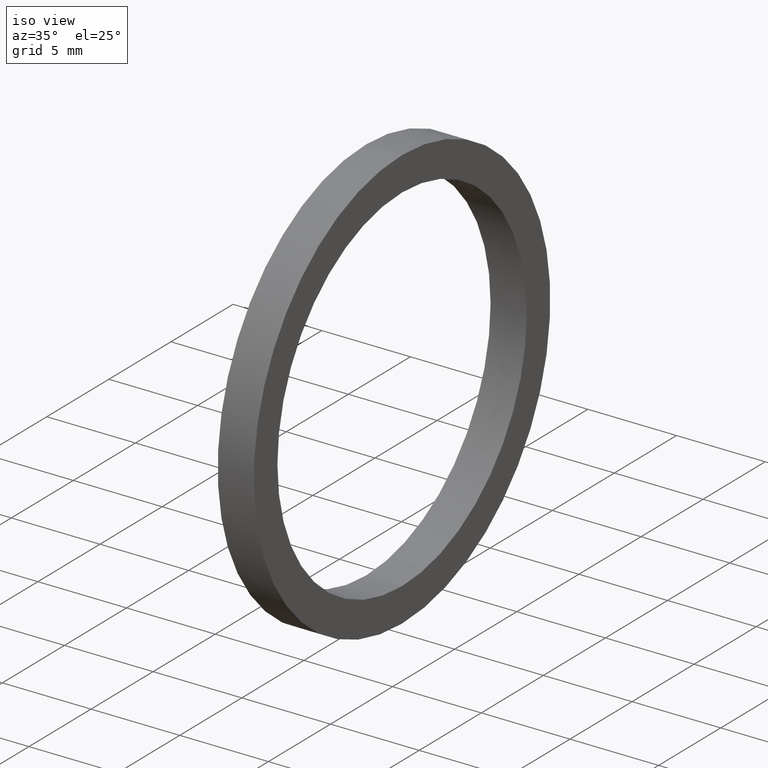
[diagram: clean part render]
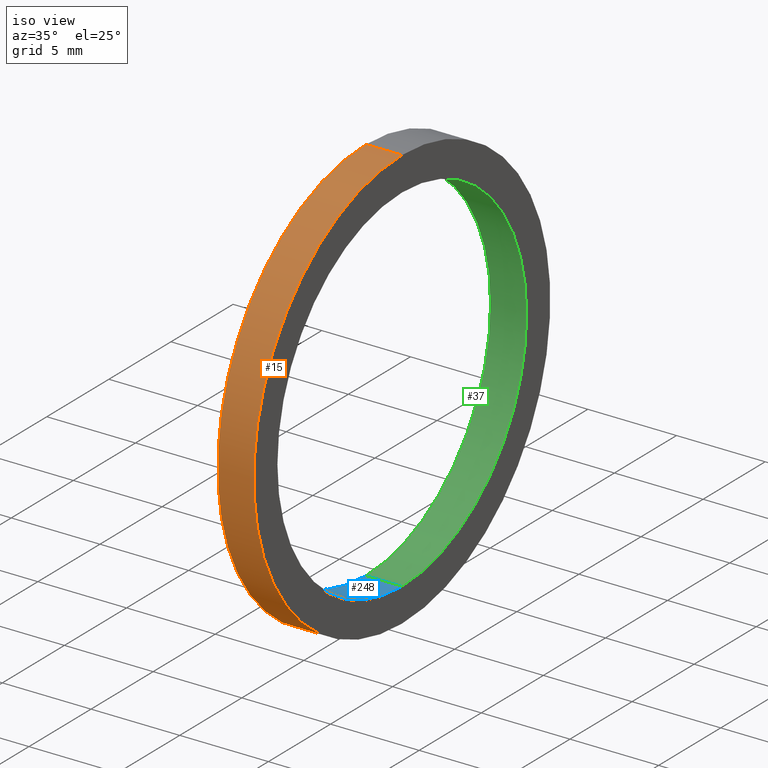
[diagram: same view with three faces highlighted in distinct colors, each labeled with its STEP entity id]
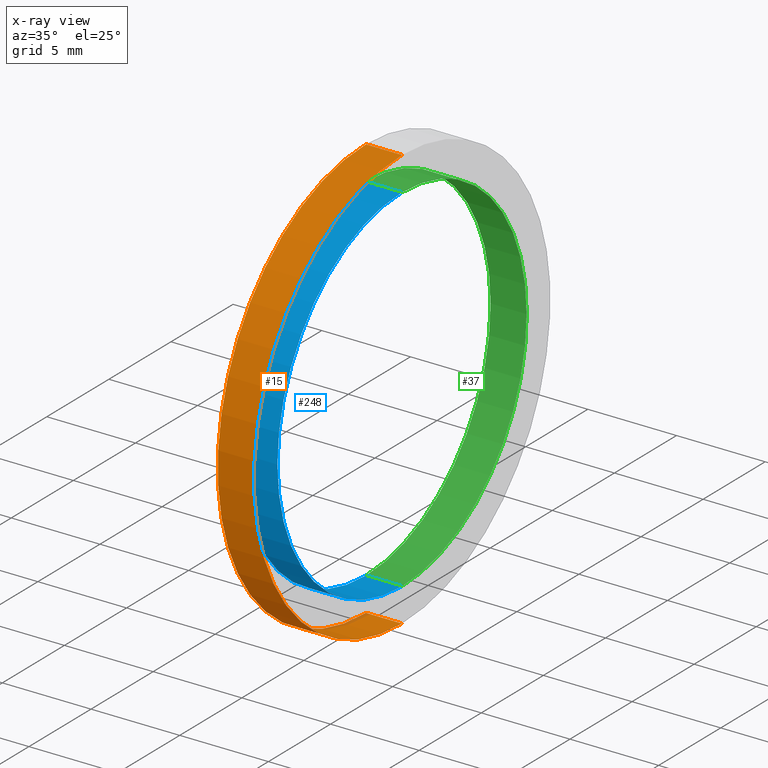
[diagram: x-ray of the same camera — body ghosted, the three highlighted faces saturated]
A machine part, iso view with three faces highlighted in distinct colors.
The next image is the same camera in x-ray (body ghosted, the three faces saturated) — at least one of them is partly hidden behind the body in this view.
Their STEP definitions:

[orange] entity #15 — the highlighted cylindrical surface (partial cylindrical patch) has radius 11.938 mm, axis along (-1, 0, 0).
#3 = VERTEX_POINT ( 'NONE', #20 ) ;
#11 = VERTEX_POINT ( 'NONE', #63 ) ;
#12 = VERTEX_POINT ( 'NONE', #66 ) ;
#14 = ORIENTED_EDGE ( 'NONE', *, *, #239, .T. ) ;
#15 = ADVANCED_FACE ( 'NONE', ( #89 ), #90, .T. ) ;
#16 = ORIENTED_EDGE ( 'NONE', *, *, #234, .F. ) ;
#17 = ORIENTED_EDGE ( 'NONE', *, *, #29, .T. ) ;
#20 = CARTESIAN_POINT ( 'NONE',  ( 0.07999999999999996000, 0.0000000000000000000, 0.4699999999999999700 ) ) ;
#28 = EDGE_LOOP ( 'NONE', ( #16, #17, #14, #229 ) ) ;
#29 = EDGE_CURVE ( 'NONE', #11, #3, #76, .T. ) ;
#63 = CARTESIAN_POINT ( 'NONE',  ( 0.07999999999999996000, 5.755839955992559700E-017, -0.4699999999999999700 ) ) ;
#66 = CARTESIAN_POINT ( 'NONE',  ( 0.0000000000000000000, 5.755839955992559700E-017, -0.4699999999999999700 ) ) ;
#73 = DIRECTION ( 'NONE',  ( 0.0000000000000000000, 0.0000000000000000000, 1.000000000000000000 ) ) ;
#74 = DIRECTION ( 'NONE',  ( -1.000000000000000000, 0.0000000000000000000, 0.0000000000000000000 ) ) ;
#75 = AXIS2_PLACEMENT_3D ( 'NONE', #92, #74, #73 ) ;
#76 = CIRCLE ( 'NONE', #75, 0.4699999999999999700 ) ;
#88 = AXIS2_PLACEMENT_3D ( 'NONE', #97, #96, #95 ) ;
#89 = FACE_OUTER_BOUND ( 'NONE', #28, .T. ) ;
#90 = CYLINDRICAL_SURFACE ( 'NONE', #88, 0.4699999999999999700 ) ;
#92 = CARTESIAN_POINT ( 'NONE',  ( 0.07999999999999996000, 0.0000000000000000000, 0.0000000000000000000 ) ) ;
#95 = DIRECTION ( 'NONE',  ( 0.0000000000000000000, 0.0000000000000000000, 1.000000000000000000 ) ) ;
#96 = DIRECTION ( 'NONE',  ( -1.000000000000000000, 0.0000000000000000000, 0.0000000000000000000 ) ) ;
#97 = CARTESIAN_POINT ( 'NONE',  ( -1.721125226614714300, 0.0000000000000000000, 0.0000000000000000000 ) ) ;
#104 = DIRECTION ( 'NONE',  ( -1.000000000000000000, 0.0000000000000000000, 0.0000000000000000000 ) ) ;
#105 = VECTOR ( 'NONE', #104, 39.37007874015748100 ) ;
#106 = CARTESIAN_POINT ( 'NONE',  ( -1.721125226614714300, 5.755839955992559700E-017, -0.4699999999999999700 ) ) ;
#107 = LINE ( 'NONE', #106, #105 ) ;
#118 = CARTESIAN_POINT ( 'NONE',  ( 0.0000000000000000000, 0.0000000000000000000, 0.0000000000000000000 ) ) ;
#119 = CARTESIAN_POINT ( 'NONE',  ( 0.0000000000000000000, 0.0000000000000000000, 0.4699999999999999700 ) ) ;
#123 = DIRECTION ( 'NONE',  ( -1.000000000000000000, 0.0000000000000000000, 0.0000000000000000000 ) ) ;
#124 = VECTOR ( 'NONE', #123, 39.37007874015748100 ) ;
#140 = DIRECTION ( 'NONE',  ( 0.0000000000000000000, 0.0000000000000000000, 1.000000000000000000 ) ) ;
#141 = DIRECTION ( 'NONE',  ( -1.000000000000000000, 0.0000000000000000000, 0.0000000000000000000 ) ) ;
#142 = AXIS2_PLACEMENT_3D ( 'NONE', #118, #141, #140 ) ;
#143 = CIRCLE ( 'NONE', #142, 0.4699999999999999700 ) ;
#179 = CARTESIAN_POINT ( 'NONE',  ( -1.721125226614714300, 0.0000000000000000000, 0.4699999999999999700 ) ) ;
#180 = LINE ( 'NONE', #179, #124 ) ;
#229 = ORIENTED_EDGE ( 'NONE', *, *, #244, .F. ) ;
#234 = EDGE_CURVE ( 'NONE', #11, #12, #107, .T. ) ;
#237 = VERTEX_POINT ( 'NONE', #119 ) ;
#239 = EDGE_CURVE ( 'NONE', #3, #237, #180, .T. ) ;
#244 = EDGE_CURVE ( 'NONE', #12, #237, #143, .T. ) ;

[blue] entity #248 — the highlighted cylindrical surface (partial cylindrical patch) has radius 10.033 mm, axis along (-1, 0, 0).
#4 = EDGE_CURVE ( 'NONE', #252, #5, #19, .T. ) ;
#5 = VERTEX_POINT ( 'NONE', #49 ) ;
#6 = ORIENTED_EDGE ( 'NONE', *, *, #7, .T. ) ;
#7 = EDGE_CURVE ( 'NONE', #5, #8, #48, .T. ) ;
#8 = VERTEX_POINT ( 'NONE', #53 ) ;
#9 = ORIENTED_EDGE ( 'NONE', *, *, #10, .F. ) ;
#10 = EDGE_CURVE ( 'NONE', #44, #8, #56, .T. ) ;
#19 = LINE ( 'NONE', #47, #55 ) ;
#44 = VERTEX_POINT ( 'NONE', #101 ) ;
#45 = ORIENTED_EDGE ( 'NONE', *, *, #4, .T. ) ;
#46 = DIRECTION ( 'NONE',  ( -1.000000000000000000, 0.0000000000000000000, 0.0000000000000000000 ) ) ;
#47 = CARTESIAN_POINT ( 'NONE',  ( -1.721125226614714300, 4.837354856632045600E-017, -0.3950000000000000200 ) ) ;
#48 = CIRCLE ( 'NONE', #52, 0.3950000000000000200 ) ;
#49 = CARTESIAN_POINT ( 'NONE',  ( 0.0000000000000000000, 4.837354856632045600E-017, -0.3950000000000000200 ) ) ;
#50 = DIRECTION ( 'NONE',  ( -1.000000000000000000, 0.0000000000000000000, 0.0000000000000000000 ) ) ;
#51 = CARTESIAN_POINT ( 'NONE',  ( 0.0000000000000000000, 0.0000000000000000000, 0.0000000000000000000 ) ) ;
#52 = AXIS2_PLACEMENT_3D ( 'NONE', #51, #50, #54 ) ;
#53 = CARTESIAN_POINT ( 'NONE',  ( 0.0000000000000000000, 0.0000000000000000000, 0.3950000000000000200 ) ) ;
#54 = DIRECTION ( 'NONE',  ( 0.0000000000000000000, 0.0000000000000000000, 1.000000000000000000 ) ) ;
#55 = VECTOR ( 'NONE', #46, 39.37007874015748100 ) ;
#56 = LINE ( 'NONE', #62, #61 ) ;
#60 = DIRECTION ( 'NONE',  ( -1.000000000000000000, 0.0000000000000000000, 0.0000000000000000000 ) ) ;
#61 = VECTOR ( 'NONE', #60, 39.37007874015748100 ) ;
#62 = CARTESIAN_POINT ( 'NONE',  ( -1.721125226614714300, 0.0000000000000000000, 0.3950000000000000200 ) ) ;
#101 = CARTESIAN_POINT ( 'NONE',  ( 0.07999999999999996000, 0.0000000000000000000, 0.3950000000000000200 ) ) ;
#134 = CARTESIAN_POINT ( 'NONE',  ( 0.07999999999999996000, 4.837354856632045600E-017, -0.3950000000000000200 ) ) ;
#135 = DIRECTION ( 'NONE',  ( 0.0000000000000000000, 0.0000000000000000000, 1.000000000000000000 ) ) ;
#136 = DIRECTION ( 'NONE',  ( -1.000000000000000000, 0.0000000000000000000, 0.0000000000000000000 ) ) ;
#137 = CARTESIAN_POINT ( 'NONE',  ( 0.07999999999999996000, 0.0000000000000000000, 0.0000000000000000000 ) ) ;
#138 = AXIS2_PLACEMENT_3D ( 'NONE', #137, #136, #135 ) ;
#144 = FACE_OUTER_BOUND ( 'NONE', #249, .T. ) ;
#145 = CIRCLE ( 'NONE', #138, 0.3950000000000000200 ) ;
#146 = DIRECTION ( 'NONE',  ( 0.0000000000000000000, 0.0000000000000000000, 1.000000000000000000 ) ) ;
#147 = DIRECTION ( 'NONE',  ( -1.000000000000000000, 0.0000000000000000000, 0.0000000000000000000 ) ) ;
#148 = CARTESIAN_POINT ( 'NONE',  ( -1.721125226614714300, 0.0000000000000000000, 0.0000000000000000000 ) ) ;
#149 = AXIS2_PLACEMENT_3D ( 'NONE', #148, #147, #146 ) ;
#150 = CYLINDRICAL_SURFACE ( 'NONE', #149, 0.3950000000000000200 ) ;
#248 = ADVANCED_FACE ( 'NONE', ( #144 ), #150, .F. ) ;
#249 = EDGE_LOOP ( 'NONE', ( #250, #45, #6, #9 ) ) ;
#250 = ORIENTED_EDGE ( 'NONE', *, *, #251, .F. ) ;
#251 = EDGE_CURVE ( 'NONE', #252, #44, #145, .T. ) ;
#252 = VERTEX_POINT ( 'NONE', #134 ) ;

[green] entity #37 — the highlighted cylindrical surface (partial cylindrical patch) has radius 10.033 mm, axis along (-1, 0, 0).
#4 = EDGE_CURVE ( 'NONE', #252, #5, #19, .T. ) ;
#5 = VERTEX_POINT ( 'NONE', #49 ) ;
#8 = VERTEX_POINT ( 'NONE', #53 ) ;
#10 = EDGE_CURVE ( 'NONE', #44, #8, #56, .T. ) ;
#13 = EDGE_CURVE ( 'NONE', #8, #5, #64, .T. ) ;
#19 = LINE ( 'NONE', #47, #55 ) ;
#32 = EDGE_CURVE ( 'NONE', #44, #252, #77, .T. ) ;
#37 = ADVANCED_FACE ( 'NONE', ( #83 ), #82, .F. ) ;
#38 = EDGE_LOOP ( 'NONE', ( #39, #40, #41, #42 ) ) ;
#39 = ORIENTED_EDGE ( 'NONE', *, *, #4, .F. ) ;
#40 = ORIENTED_EDGE ( 'NONE', *, *, #32, .F. ) ;
#41 = ORIENTED_EDGE ( 'NONE', *, *, #10, .T. ) ;
#42 = ORIENTED_EDGE ( 'NONE', *, *, #13, .T. ) ;
#44 = VERTEX_POINT ( 'NONE', #101 ) ;
#46 = DIRECTION ( 'NONE',  ( -1.000000000000000000, 0.0000000000000000000, 0.0000000000000000000 ) ) ;
#47 = CARTESIAN_POINT ( 'NONE',  ( -1.721125226614714300, 4.837354856632045600E-017, -0.3950000000000000200 ) ) ;
#49 = CARTESIAN_POINT ( 'NONE',  ( 0.0000000000000000000, 4.837354856632045600E-017, -0.3950000000000000200 ) ) ;
#53 = CARTESIAN_POINT ( 'NONE',  ( 0.0000000000000000000, 0.0000000000000000000, 0.3950000000000000200 ) ) ;
#55 = VECTOR ( 'NONE', #46, 39.37007874015748100 ) ;
#56 = LINE ( 'NONE', #62, #61 ) ;
#57 = AXIS2_PLACEMENT_3D ( 'NONE', #59, #58, #70 ) ;
#58 = DIRECTION ( 'NONE',  ( -1.000000000000000000, 0.0000000000000000000, 0.0000000000000000000 ) ) ;
#59 = CARTESIAN_POINT ( 'NONE',  ( 0.0000000000000000000, 0.0000000000000000000, 0.0000000000000000000 ) ) ;
#60 = DIRECTION ( 'NONE',  ( -1.000000000000000000, 0.0000000000000000000, 0.0000000000000000000 ) ) ;
#61 = VECTOR ( 'NONE', #60, 39.37007874015748100 ) ;
#62 = CARTESIAN_POINT ( 'NONE',  ( -1.721125226614714300, 0.0000000000000000000, 0.3950000000000000200 ) ) ;
#64 = CIRCLE ( 'NONE', #57, 0.3950000000000000200 ) ;
#65 = AXIS2_PLACEMENT_3D ( 'NONE', #69, #67, #71 ) ;
#67 = DIRECTION ( 'NONE',  ( -1.000000000000000000, 0.0000000000000000000, 0.0000000000000000000 ) ) ;
#69 = CARTESIAN_POINT ( 'NONE',  ( -1.721125226614714300, 0.0000000000000000000, 0.0000000000000000000 ) ) ;
#70 = DIRECTION ( 'NONE',  ( 0.0000000000000000000, 0.0000000000000000000, 1.000000000000000000 ) ) ;
#71 = DIRECTION ( 'NONE',  ( 0.0000000000000000000, 0.0000000000000000000, 1.000000000000000000 ) ) ;
#77 = CIRCLE ( 'NONE', #87, 0.3950000000000000200 ) ;
#82 = CYLINDRICAL_SURFACE ( 'NONE', #65, 0.3950000000000000200 ) ;
#83 = FACE_OUTER_BOUND ( 'NONE', #38, .T. ) ;
#84 = DIRECTION ( 'NONE',  ( 0.0000000000000000000, 0.0000000000000000000, 1.000000000000000000 ) ) ;
#85 = DIRECTION ( 'NONE',  ( -1.000000000000000000, 0.0000000000000000000, 0.0000000000000000000 ) ) ;
#86 = CARTESIAN_POINT ( 'NONE',  ( 0.07999999999999996000, 0.0000000000000000000, 0.0000000000000000000 ) ) ;
#87 = AXIS2_PLACEMENT_3D ( 'NONE', #86, #85, #84 ) ;
#101 = CARTESIAN_POINT ( 'NONE',  ( 0.07999999999999996000, 0.0000000000000000000, 0.3950000000000000200 ) ) ;
#134 = CARTESIAN_POINT ( 'NONE',  ( 0.07999999999999996000, 4.837354856632045600E-017, -0.3950000000000000200 ) ) ;
#252 = VERTEX_POINT ( 'NONE', #134 ) ;